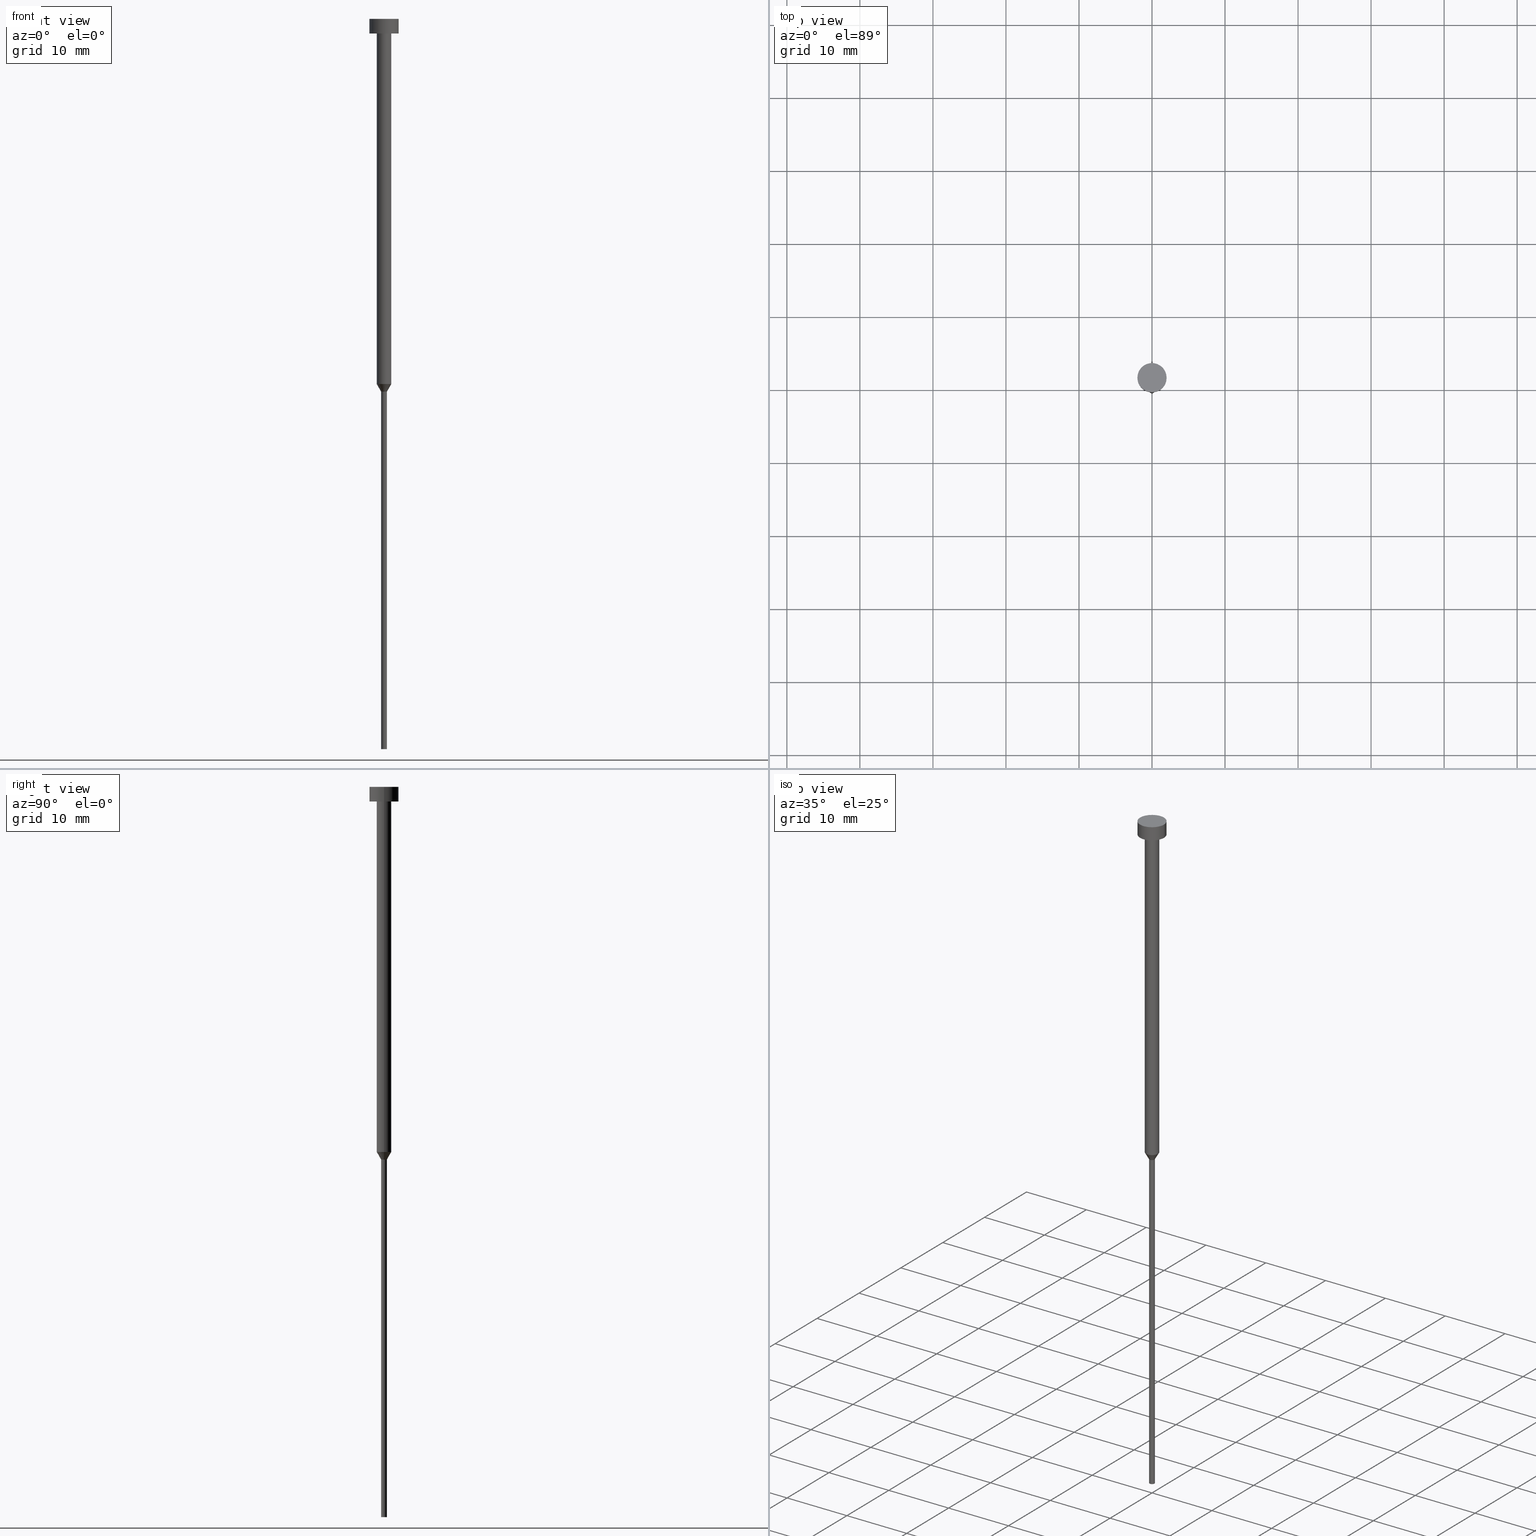
[diagram: canonical four-view strip — front | top / right | iso, engineering-drawing reading convention]
A machine part, canonical four-view strip (front | top / right | iso — engineering-drawing reading convention). The complete STEP part file that produces these views, byte-faithful:
ISO-10303-21;
HEADER;
FILE_DESCRIPTION (( 'STEP AP203' ),
    '1' );
FILE_NAME ('7100.STEP',
    '2024-09-06T08:46:56',
    ( '' ),
    ( '' ),
    'SwSTEP 2.0',
    'SolidWorks 2019',
    '' );
FILE_SCHEMA (( 'CONFIG_CONTROL_DESIGN' ));
ENDSEC;

DATA;
#1 = PERSON_AND_ORGANIZATION_ROLE ( 'design_owner' ) ;
#2 = ORIENTED_EDGE ( 'NONE', *, *, #165, .T. ) ;
#3 = CARTESIAN_POINT ( 'NONE',  ( 0.000000000000000000, 0.000000000000000000, -100.0000000000000000 ) ) ;
#4 = CC_DESIGN_PERSON_AND_ORGANIZATION_ASSIGNMENT ( #179, #69, ( #21 ) ) ;
#5 = DIRECTION ( 'NONE',  ( 1.000000000000000000, 0.000000000000000000, 0.000000000000000000 ) ) ;
#6 = PERSON_AND_ORGANIZATION ( #9, #188 ) ;
#7 = EDGE_LOOP ( 'NONE', ( #200, #2, #274, #240 ) ) ;
#8 = LOCAL_TIME ( 10, 46, 56.00000000000000000, #172 ) ;
#9 = PERSON ( 'NEUR�EN�', 'NEUR�EN�', 'NEUR�EN�', ('NEUR�EN�'), ('NEUR�EN�'), ('NEUR�EN�') ) ;
#10 = DIRECTION ( 'NONE',  ( 0.000000000000000000, 0.000000000000000000, 1.000000000000000000 ) ) ;
#11 = FACE_OUTER_BOUND ( 'NONE', #314, .T. ) ;
#12 = APPROVAL ( #286, 'NEUR�EN�' ) ;
#13 = ORIENTED_EDGE ( 'NONE', *, *, #158, .T. ) ;
#14 = ORIENTED_EDGE ( 'NONE', *, *, #124, .T. ) ;
#15 = CIRCLE ( 'NONE', #340, 2.000000000000000000 ) ;
#16 = CYLINDRICAL_SURFACE ( 'NONE', #95, 1.000000000000003331 ) ;
#17 = DIRECTION ( 'NONE',  ( 1.000000000000000000, 0.000000000000000000, 0.000000000000000000 ) ) ;
#18 = ADVANCED_FACE ( 'NONE', ( #220 ), #266, .T. ) ;
#19 = CALENDAR_DATE ( 2024, 6, 9 ) ;
#20 = DIRECTION ( 'NONE',  ( -0.000000000000000000, -0.000000000000000000, 1.000000000000000000 ) ) ;
#21 = PRODUCT_DEFINITION_FORMATION_WITH_SPECIFIED_SOURCE ( 'LIBOVOLN�', '', #236, .NOT_KNOWN. ) ;
#22 = VECTOR ( 'NONE', #339, 1000.000000000000227 ) ;
#23 = DIRECTION ( 'NONE',  ( -1.000000000000000000, 0.000000000000000000, -0.000000000000000000 ) ) ;
#24 = APPROVAL_PERSON_ORGANIZATION ( #149, #37, #147 ) ;
#25 = EDGE_CURVE ( 'NONE', #58, #238, #338, .T. ) ;
#26 = DIRECTION ( 'NONE',  ( -0.5000000000000021094, 6.123233995736791920E-17, 0.8660254037844373753 ) ) ;
#27 = ORIENTED_EDGE ( 'NONE', *, *, #124, .F. ) ;
#28 = DIRECTION ( 'NONE',  ( -0.000000000000000000, -0.000000000000000000, 1.000000000000000000 ) ) ;
#29 = APPLICATION_PROTOCOL_DEFINITION ( 'international standard', 'config_control_design', 1994, #45 ) ;
#30 = AXIS2_PLACEMENT_3D ( 'NONE', #326, #211, #75 ) ;
#31 = EDGE_LOOP ( 'NONE', ( #56, #213 ) ) ;
#32 = CARTESIAN_POINT ( 'NONE',  ( -0.3999999999999999667, 4.898587196589412459E-17, 0.000000000000000000 ) ) ;
#33 = CALENDAR_DATE ( 2024, 6, 9 ) ;
#34 = DIRECTION ( 'NONE',  ( 1.000000000000000000, 0.000000000000000000, 0.000000000000000000 ) ) ;
#35 = DIRECTION ( 'NONE',  ( 1.000000000000000000, 0.000000000000000000, 0.000000000000000000 ) ) ;
#36 = EDGE_LOOP ( 'NONE', ( #201, #217, #341, #299 ) ) ;
#37 = APPROVAL ( #231, 'NEUR�EN�' ) ;
#38 = CIRCLE ( 'NONE', #275, 0.3999999999999999667 ) ;
#39 = ORIENTED_EDGE ( 'NONE', *, *, #145, .F. ) ;
#40 = CARTESIAN_POINT ( 'NONE',  ( 0.000000000000000000, 0.000000000000000000, -50.00000000000000000 ) ) ;
#41 = DIRECTION ( 'NONE',  ( 0.000000000000000000, -0.000000000000000000, 1.000000000000000000 ) ) ;
#42 = AXIS2_PLACEMENT_3D ( 'NONE', #108, #41, #101 ) ;
#43 = DESIGN_CONTEXT ( 'detailed design', #202, 'design' ) ;
#44 = DIRECTION ( 'NONE',  ( 1.000000000000000000, 0.000000000000000000, 0.000000000000000000 ) ) ;
#45 = APPLICATION_CONTEXT ( 'configuration controlled 3d designs of mechanical parts and assemblies' ) ;
#46 = DIRECTION ( 'NONE',  ( 1.000000000000000000, 0.000000000000000000, 0.000000000000000000 ) ) ;
#47 = CC_DESIGN_APPROVAL ( #72, ( #53 ) ) ;
#48 = FACE_OUTER_BOUND ( 'NONE', #332, .T. ) ;
#49 = CIRCLE ( 'NONE', #251, 1.000000000000003553 ) ;
#50 = EDGE_LOOP ( 'NONE', ( #27, #255, #168, #163 ) ) ;
#51 = CARTESIAN_POINT ( 'NONE',  ( 0.000000000000000000, 0.000000000000000000, 0.000000000000000000 ) ) ;
#52 = LOCAL_TIME ( 10, 46, 56.00000000000000000, #96 ) ;
#53 = PRODUCT_DEFINITION ( 'NEZN�M�', '', #21, #43 ) ;
#54 = ORIENTED_EDGE ( 'NONE', *, *, #158, .F. ) ;
#55 = CARTESIAN_POINT ( 'NONE',  ( 0.000000000000000000, 0.000000000000000000, 0.000000000000000000 ) ) ;
#56 = ORIENTED_EDGE ( 'NONE', *, *, #191, .T. ) ;
#57 = CARTESIAN_POINT ( 'NONE',  ( 0.000000000000000000, 0.000000000000000000, 0.000000000000000000 ) ) ;
#58 = VERTEX_POINT ( 'NONE', #254 ) ;
#59 = FACE_OUTER_BOUND ( 'NONE', #281, .T. ) ;
#60 = FACE_OUTER_BOUND ( 'NONE', #155, .T. ) ;
#61 = EDGE_CURVE ( 'NONE', #329, #272, #49, .T. ) ;
#62 = ORIENTED_EDGE ( 'NONE', *, *, #136, .T. ) ;
#63 = VERTEX_POINT ( 'NONE', #225 ) ;
#64 = SECURITY_CLASSIFICATION ( '', '', #227 ) ;
#65 = CARTESIAN_POINT ( 'NONE',  ( 2.000000000000000000, 0.000000000000000000, -2.000000000000000444 ) ) ;
#66 = CALENDAR_DATE ( 2024, 6, 9 ) ;
#67 = CARTESIAN_POINT ( 'NONE',  ( 0.4000000000000000222, 0.000000000000000000, -100.0000000000000000 ) ) ;
#68 = LINE ( 'NONE', #110, #241 ) ;
#69 = PERSON_AND_ORGANIZATION_ROLE ( 'design_supplier' ) ;
#70 = CARTESIAN_POINT ( 'NONE',  ( 0.000000000000000000, 0.000000000000000000, -2.000000000000000444 ) ) ;
#71 = ADVANCED_BREP_SHAPE_REPRESENTATION ( '7100', ( #78, #153 ), #162 ) ;
#72 = APPROVAL ( #114, 'NEUR�EN�' ) ;
#73 = CARTESIAN_POINT ( 'NONE',  ( 0.000000000000000000, 0.000000000000000000, -50.00000000000000000 ) ) ;
#74 = DIRECTION ( 'NONE',  ( -0.000000000000000000, -0.000000000000000000, 1.000000000000000000 ) ) ;
#75 = DIRECTION ( 'NONE',  ( 1.000000000000000000, 0.000000000000000000, 0.000000000000000000 ) ) ;
#76 = CIRCLE ( 'NONE', #328, 0.4000000000000000222 ) ;
#77 = ORIENTED_EDGE ( 'NONE', *, *, #351, .F. ) ;
#78 = MANIFOLD_SOLID_BREP ( 'Rotovat1', #82 ) ;
#79 = EDGE_CURVE ( 'NONE', #238, #80, #99, .T. ) ;
#80 = VERTEX_POINT ( 'NONE', #94 ) ;
#81 = CARTESIAN_POINT ( 'NONE',  ( 1.000000000000003331, 0.000000000000000000, 0.000000000000000000 ) ) ;
#82 = CLOSED_SHELL ( 'NONE', ( #229, #321, #102, #216, #256, #150, #18, #186, #88, #210, #192 ) ) ;
#83 = VERTEX_POINT ( 'NONE', #65 ) ;
#84 = DATE_AND_TIME ( #219, #354 ) ;
#85 = VECTOR ( 'NONE', #271, 1000.000000000000000 ) ;
#86 = CC_DESIGN_SECURITY_CLASSIFICATION ( #64, ( #21 ) ) ;
#87 = CARTESIAN_POINT ( 'NONE',  ( 0.000000000000000000, 0.000000000000000000, -50.00000000000000000 ) ) ;
#88 = ADVANCED_FACE ( 'NONE', ( #305, #59 ), #287, .T. ) ;
#89 = LINE ( 'NONE', #81, #245 ) ;
#90 = ORIENTED_EDGE ( 'NONE', *, *, #130, .F. ) ;
#91 = DIRECTION ( 'NONE',  ( -0.000000000000000000, -0.000000000000000000, 1.000000000000000000 ) ) ;
#92 = ORIENTED_EDGE ( 'NONE', *, *, #294, .F. ) ;
#93 = CIRCLE ( 'NONE', #327, 0.4000000000000000222 ) ;
#94 = CARTESIAN_POINT ( 'NONE',  ( -1.000000000000003109, 1.224646799147356905E-16, -50.00000000000000000 ) ) ;
#95 = AXIS2_PLACEMENT_3D ( 'NONE', #51, #237, #228 ) ;
#96 = COORDINATED_UNIVERSAL_TIME_OFFSET ( 1, 0, .AHEAD. ) ;
#97 = DIRECTION ( 'NONE',  ( 1.000000000000000000, 0.000000000000000000, 0.000000000000000000 ) ) ;
#98 = FACE_OUTER_BOUND ( 'NONE', #243, .T. ) ;
#99 = CIRCLE ( 'NONE', #184, 1.000000000000003109 ) ;
#100 = APPROVAL_DATE_TIME ( #342, #12 ) ;
#101 = DIRECTION ( 'NONE',  ( 1.000000000000000000, 0.000000000000000000, 0.000000000000000000 ) ) ;
#102 = ADVANCED_FACE ( 'NONE', ( #11 ), #257, .T. ) ;
#103 = DIRECTION ( 'NONE',  ( 1.000000000000000000, 0.000000000000000000, 0.000000000000000000 ) ) ;
#104 = AXIS2_PLACEMENT_3D ( 'NONE', #313, #226, #279 ) ;
#105 = AXIS2_PLACEMENT_3D ( 'NONE', #319, #148, #180 ) ;
#106 = VERTEX_POINT ( 'NONE', #67 ) ;
#107 = CC_DESIGN_DATE_AND_TIME_ASSIGNMENT ( #127, #198, ( #64 ) ) ;
#108 = CARTESIAN_POINT ( 'NONE',  ( 0.000000000000000000, 0.000000000000000000, -1.224646799147352961E-16 ) ) ;
#109 = ORIENTED_EDGE ( 'NONE', *, *, #25, .F. ) ;
#110 = CARTESIAN_POINT ( 'NONE',  ( -1.000000000000003331, 1.224646799147357151E-16, 0.000000000000000000 ) ) ;
#111 = ORIENTED_EDGE ( 'NONE', *, *, #176, .T. ) ;
#112 = APPROVAL_ROLE ( '' ) ;
#113 = AXIS2_PLACEMENT_3D ( 'NONE', #230, #182, #263 ) ;
#114 = APPROVAL_STATUS ( 'not_yet_approved' ) ;
#115 = AXIS2_PLACEMENT_3D ( 'NONE', #40, #282, #34 ) ;
#116 = AXIS2_PLACEMENT_3D ( 'NONE', #223, #249, #5 ) ;
#117 = EDGE_LOOP ( 'NONE', ( #92, #330, #221, #143 ) ) ;
#118 = DATE_TIME_ROLE ( 'creation_date' ) ;
#119 = AXIS2_PLACEMENT_3D ( 'NONE', #300, #193, #142 ) ;
#120 = VERTEX_POINT ( 'NONE', #175 ) ;
#121 = CC_DESIGN_PERSON_AND_ORGANIZATION_ASSIGNMENT ( #6, #304, ( #53 ) ) ;
#122 = DIRECTION ( 'NONE',  ( -0.000000000000000000, -0.000000000000000000, 1.000000000000000000 ) ) ;
#123 = CARTESIAN_POINT ( 'NONE',  ( -2.000000000000000000, 2.449293598294706414E-16, 0.000000000000000000 ) ) ;
#124 = EDGE_CURVE ( 'NONE', #284, #120, #139, .T. ) ;
#125 = CARTESIAN_POINT ( 'NONE',  ( 0.000000000000000000, 0.000000000000000000, -2.000000000000000444 ) ) ;
#126 = ORIENTED_EDGE ( 'NONE', *, *, #309, .T. ) ;
#127 = DATE_AND_TIME ( #19, #8 ) ;
#128 = FACE_OUTER_BOUND ( 'NONE', #31, .T. ) ;
#129 = DIRECTION ( 'NONE',  ( -0.000000000000000000, -0.000000000000000000, 1.000000000000000000 ) ) ;
#130 = EDGE_CURVE ( 'NONE', #83, #284, #267, .T. ) ;
#131 = PLANE ( 'NONE',  #42 ) ;
#132 = EDGE_CURVE ( 'NONE', #120, #297, #316, .T. ) ;
#133 = CIRCLE ( 'NONE', #334, 1.000000000000003109 ) ;
#134 = LINE ( 'NONE', #324, #214 ) ;
#135 = CARTESIAN_POINT ( 'NONE',  ( 1.000000000000003109, 0.000000000000000000, -50.00000000000000000 ) ) ;
#136 = EDGE_CURVE ( 'NONE', #80, #329, #68, .T. ) ;
#137 = PERSON_AND_ORGANIZATION ( #9, #188 ) ;
#138 = CARTESIAN_POINT ( 'NONE',  ( -2.000000000000000000, 2.449293598294706414E-16, -2.000000000000000444 ) ) ;
#139 = LINE ( 'NONE', #123, #302 ) ;
#140 = DATE_AND_TIME ( #33, #347 ) ;
#141 = CARTESIAN_POINT ( 'NONE',  ( 0.000000000000000000, 0.000000000000000000, -2.449293598294705921E-16 ) ) ;
#142 = DIRECTION ( 'NONE',  ( 1.000000000000000000, 0.000000000000000000, 0.000000000000000000 ) ) ;
#143 = ORIENTED_EDGE ( 'NONE', *, *, #165, .F. ) ;
#144 = CARTESIAN_POINT ( 'NONE',  ( 1.000000000000003109, 0.000000000000000000, -50.00000000000000000 ) ) ;
#145 = EDGE_CURVE ( 'NONE', #106, #204, #93, .T. ) ;
#146 = DIRECTION ( 'NONE',  ( 1.000000000000000000, 0.000000000000000000, 0.000000000000000000 ) ) ;
#147 = APPROVAL_ROLE ( '' ) ;
#148 = DIRECTION ( 'NONE',  ( -0.000000000000000000, -0.000000000000000000, 1.000000000000000000 ) ) ;
#149 = PERSON_AND_ORGANIZATION ( #9, #188 ) ;
#150 = ADVANCED_FACE ( 'NONE', ( #189 ), #349, .T. ) ;
#151 = CYLINDRICAL_SURFACE ( 'NONE', #288, 2.000000000000000000 ) ;
#152 = PLANE ( 'NONE',  #289 ) ;
#153 = AXIS2_PLACEMENT_3D ( 'NONE', #57, #10, #222 ) ;
#154 = FACE_OUTER_BOUND ( 'NONE', #173, .T. ) ;
#155 = EDGE_LOOP ( 'NONE', ( #301, #62, #54, #277 ) ) ;
#156 = LOCAL_TIME ( 10, 46, 56.00000000000000000, #315 ) ;
#157 = CARTESIAN_POINT ( 'NONE',  ( 0.000000000000000000, 0.000000000000000000, 0.000000000000000000 ) ) ;
#158 = EDGE_CURVE ( 'NONE', #272, #329, #244, .T. ) ;
#159 = EDGE_LOOP ( 'NONE', ( #13, #350 ) ) ;
#160 = MECHANICAL_CONTEXT ( 'NONE', #45, 'mechanical' ) ;
#161 =( LENGTH_UNIT ( ) NAMED_UNIT ( * ) SI_UNIT ( .MILLI., .METRE. ) );
#162 =( GEOMETRIC_REPRESENTATION_CONTEXT ( 3 ) GLOBAL_UNCERTAINTY_ASSIGNED_CONTEXT ( ( #248 ) ) GLOBAL_UNIT_ASSIGNED_CONTEXT ( ( #161, #273, #246 ) ) REPRESENTATION_CONTEXT ( 'NONE', 'WORKASPACE' ) );
#163 = ORIENTED_EDGE ( 'NONE', *, *, #132, .F. ) ;
#164 = LINE ( 'NONE', #32, #323 ) ;
#165 = EDGE_CURVE ( 'NONE', #63, #58, #235, .T. ) ;
#166 = DIRECTION ( 'NONE',  ( -1.000000000000000000, 0.000000000000000000, -0.000000000000000000 ) ) ;
#167 = CARTESIAN_POINT ( 'NONE',  ( -1.000000000000003553, 1.224646799147357398E-16, -2.000000000000000444 ) ) ;
#168 = ORIENTED_EDGE ( 'NONE', *, *, #264, .T. ) ;
#169 = PERSON_AND_ORGANIZATION_ROLE ( 'classification_officer' ) ;
#170 = ORIENTED_EDGE ( 'NONE', *, *, #79, .F. ) ;
#171 = CC_DESIGN_DATE_AND_TIME_ASSIGNMENT ( #140, #118, ( #53 ) ) ;
#172 = COORDINATED_UNIVERSAL_TIME_OFFSET ( 1, 0, .AHEAD. ) ;
#173 = EDGE_LOOP ( 'NONE', ( #310, #348, #190, #270 ) ) ;
#174 = PERSON_AND_ORGANIZATION ( #9, #188 ) ;
#175 = CARTESIAN_POINT ( 'NONE',  ( -2.000000000000000000, 2.449293598294706414E-16, -2.449293598294705921E-16 ) ) ;
#176 = EDGE_CURVE ( 'NONE', #63, #80, #185, .T. ) ;
#177 = DIRECTION ( 'NONE',  ( -0.000000000000000000, -0.000000000000000000, 1.000000000000000000 ) ) ;
#178 = AXIS2_PLACEMENT_3D ( 'NONE', #55, #91, #242 ) ;
#179 = PERSON_AND_ORGANIZATION ( #9, #188 ) ;
#180 = DIRECTION ( 'NONE',  ( 1.000000000000000000, 0.000000000000000000, 0.000000000000000000 ) ) ;
#181 = CC_DESIGN_PERSON_AND_ORGANIZATION_ASSIGNMENT ( #345, #311, ( #21 ) ) ;
#182 = DIRECTION ( 'NONE',  ( -0.000000000000000000, -0.000000000000000000, 1.000000000000000000 ) ) ;
#183 = PRODUCT_DEFINITION_SHAPE ( 'NONE', 'NONE',  #53 ) ;
#184 = AXIS2_PLACEMENT_3D ( 'NONE', #87, #195, #97 ) ;
#185 = LINE ( 'NONE', #352, #322 ) ;
#186 = ADVANCED_FACE ( 'NONE', ( #154 ), #16, .T. ) ;
#187 = ORIENTED_EDGE ( 'NONE', *, *, #191, .F. ) ;
#188 = ORGANIZATION ( 'NEUR�EN�', 'NEUR�EN�', '' ) ;
#189 = FACE_OUTER_BOUND ( 'NONE', #117, .T. ) ;
#190 = ORIENTED_EDGE ( 'NONE', *, *, #283, .T. ) ;
#191 = EDGE_CURVE ( 'NONE', #297, #120, #15, .T. ) ;
#192 = ADVANCED_FACE ( 'NONE', ( #128 ), #131, .T. ) ;
#193 = DIRECTION ( 'NONE',  ( -0.000000000000000000, -0.000000000000000000, 1.000000000000000000 ) ) ;
#194 = APPROVAL_DATE_TIME ( #84, #72 ) ;
#195 = DIRECTION ( 'NONE',  ( -0.000000000000000000, -0.000000000000000000, 1.000000000000000000 ) ) ;
#196 = CARTESIAN_POINT ( 'NONE',  ( 2.000000000000000000, 0.000000000000000000, -2.449293598294705921E-16 ) ) ;
#197 = DIRECTION ( 'NONE',  ( -0.000000000000000000, -0.000000000000000000, 1.000000000000000000 ) ) ;
#198 = DATE_TIME_ROLE ( 'classification_date' ) ;
#199 = CC_DESIGN_PERSON_AND_ORGANIZATION_ASSIGNMENT ( #137, #1, ( #236 ) ) ;
#200 = ORIENTED_EDGE ( 'NONE', *, *, #176, .F. ) ;
#201 = ORIENTED_EDGE ( 'NONE', *, *, #145, .T. ) ;
#202 = APPLICATION_CONTEXT ( 'configuration controlled 3d designs of mechanical parts and assemblies' ) ;
#203 = APPROVAL_DATE_TIME ( #262, #37 ) ;
#204 = VERTEX_POINT ( 'NONE', #290 ) ;
#205 = DIRECTION ( 'NONE',  ( 0.000000000000000000, 0.000000000000000000, -1.000000000000000000 ) ) ;
#206 = SHAPE_DEFINITION_REPRESENTATION ( #183, #71 ) ;
#207 = AXIS2_PLACEMENT_3D ( 'NONE', #70, #320, #261 ) ;
#208 = FACE_OUTER_BOUND ( 'NONE', #50, .T. ) ;
#209 = DIRECTION ( 'NONE',  ( -0.000000000000000000, -0.000000000000000000, 1.000000000000000000 ) ) ;
#210 = ADVANCED_FACE ( 'NONE', ( #208 ), #212, .T. ) ;
#211 = DIRECTION ( 'NONE',  ( -0.000000000000000000, -0.000000000000000000, 1.000000000000000000 ) ) ;
#212 = CYLINDRICAL_SURFACE ( 'NONE', #30, 2.000000000000000000 ) ;
#213 = ORIENTED_EDGE ( 'NONE', *, *, #132, .T. ) ;
#214 = VECTOR ( 'NONE', #74, 1000.000000000000000 ) ;
#215 = DIRECTION ( 'NONE',  ( 1.000000000000000000, 0.000000000000000000, 0.000000000000000000 ) ) ;
#216 = ADVANCED_FACE ( 'NONE', ( #296 ), #343, .T. ) ;
#217 = ORIENTED_EDGE ( 'NONE', *, *, #294, .T. ) ;
#218 = ORIENTED_EDGE ( 'NONE', *, *, #280, .F. ) ;
#219 = CALENDAR_DATE ( 2024, 6, 9 ) ;
#220 = FACE_OUTER_BOUND ( 'NONE', #7, .T. ) ;
#221 = ORIENTED_EDGE ( 'NONE', *, *, #234, .T. ) ;
#222 = DIRECTION ( 'NONE',  ( 1.000000000000000000, 0.000000000000000000, 0.000000000000000000 ) ) ;
#223 = CARTESIAN_POINT ( 'NONE',  ( 0.000000000000000000, 0.000000000000000000, -2.000000000000000444 ) ) ;
#224 = AXIS2_PLACEMENT_3D ( 'NONE', #336, #258, #166 ) ;
#225 = CARTESIAN_POINT ( 'NONE',  ( -0.3999999999999999667, 4.898587196589412459E-17, -51.03923048454132783 ) ) ;
#226 = DIRECTION ( 'NONE',  ( -0.000000000000000000, -0.000000000000000000, 1.000000000000000000 ) ) ;
#227 = SECURITY_CLASSIFICATION_LEVEL ( 'unclassified' ) ;
#228 = DIRECTION ( 'NONE',  ( 1.000000000000000000, 0.000000000000000000, 0.000000000000000000 ) ) ;
#229 = ADVANCED_FACE ( 'NONE', ( #98 ), #151, .T. ) ;
#230 = CARTESIAN_POINT ( 'NONE',  ( 0.000000000000000000, 0.000000000000000000, -51.03923048454132783 ) ) ;
#231 = APPROVAL_STATUS ( 'not_yet_approved' ) ;
#232 = CARTESIAN_POINT ( 'NONE',  ( 0.3999999999999999667, 0.000000000000000000, 0.000000000000000000 ) ) ;
#233 = APPROVAL_PERSON_ORGANIZATION ( #276, #72, #112 ) ;
#234 = EDGE_CURVE ( 'NONE', #106, #58, #317, .T. ) ;
#235 = CIRCLE ( 'NONE', #113, 0.3999999999999999667 ) ;
#236 = PRODUCT ( '7100', '7100', '', ( #160 ) ) ;
#237 = DIRECTION ( 'NONE',  ( -0.000000000000000000, -0.000000000000000000, 1.000000000000000000 ) ) ;
#238 = VERTEX_POINT ( 'NONE', #135 ) ;
#239 = DIRECTION ( 'NONE',  ( 1.000000000000000000, 0.000000000000000000, 0.000000000000000000 ) ) ;
#240 = ORIENTED_EDGE ( 'NONE', *, *, #253, .F. ) ;
#241 = VECTOR ( 'NONE', #177, 1000.000000000000000 ) ;
#242 = DIRECTION ( 'NONE',  ( 1.000000000000000000, 0.000000000000000000, 0.000000000000000000 ) ) ;
#243 = EDGE_LOOP ( 'NONE', ( #355, #14, #187, #353 ) ) ;
#244 = CIRCLE ( 'NONE', #207, 1.000000000000003553 ) ;
#245 = VECTOR ( 'NONE', #28, 1000.000000000000000 ) ;
#246 =( NAMED_UNIT ( * ) SI_UNIT ( $, .STERADIAN. ) SOLID_ANGLE_UNIT ( ) );
#247 = APPLICATION_PROTOCOL_DEFINITION ( 'international standard', 'config_control_design', 1994, #202 ) ;
#248 = UNCERTAINTY_MEASURE_WITH_UNIT (LENGTH_MEASURE( 1.000000000000000082E-05 ), #161, 'distance_accuracy_value', 'NONE');
#249 = DIRECTION ( 'NONE',  ( -0.000000000000000000, -0.000000000000000000, 1.000000000000000000 ) ) ;
#250 = CYLINDRICAL_SURFACE ( 'NONE', #178, 1.000000000000003331 ) ;
#251 = AXIS2_PLACEMENT_3D ( 'NONE', #125, #333, #146 ) ;
#252 = DIRECTION ( 'NONE',  ( -0.000000000000000000, -0.000000000000000000, 1.000000000000000000 ) ) ;
#253 = EDGE_CURVE ( 'NONE', #80, #238, #133, .T. ) ;
#254 = CARTESIAN_POINT ( 'NONE',  ( 0.3999999999999999667, 0.000000000000000000, -51.03923048454132783 ) ) ;
#255 = ORIENTED_EDGE ( 'NONE', *, *, #351, .T. ) ;
#256 = ADVANCED_FACE ( 'NONE', ( #48 ), #152, .T. ) ;
#257 = CONICAL_SURFACE ( 'NONE', #104, 1.000000000000003109, 0.5235987755983013692 ) ;
#258 = DIRECTION ( 'NONE',  ( 0.000000000000000000, 0.000000000000000000, -1.000000000000000000 ) ) ;
#259 = DIRECTION ( 'NONE',  ( -0.000000000000000000, -0.000000000000000000, 1.000000000000000000 ) ) ;
#260 = PERSON_AND_ORGANIZATION ( #9, #188 ) ;
#261 = DIRECTION ( 'NONE',  ( 1.000000000000000000, 0.000000000000000000, 0.000000000000000000 ) ) ;
#262 = DATE_AND_TIME ( #66, #156 ) ;
#263 = DIRECTION ( 'NONE',  ( 1.000000000000000000, 0.000000000000000000, 0.000000000000000000 ) ) ;
#264 = EDGE_CURVE ( 'NONE', #83, #297, #134, .T. ) ;
#265 = APPROVAL_PERSON_ORGANIZATION ( #174, #12, #308 ) ;
#266 = CONICAL_SURFACE ( 'NONE', #115, 1.000000000000003109, 0.5235987755983013692 ) ;
#267 = CIRCLE ( 'NONE', #116, 2.000000000000000000 ) ;
#268 = CARTESIAN_POINT ( 'NONE',  ( 0.000000000000000000, 0.000000000000000000, -100.0000000000000000 ) ) ;
#269 = CC_DESIGN_APPROVAL ( #12, ( #64 ) ) ;
#270 = ORIENTED_EDGE ( 'NONE', *, *, #61, .F. ) ;
#271 = DIRECTION ( 'NONE',  ( -0.000000000000000000, -0.000000000000000000, 1.000000000000000000 ) ) ;
#272 = VERTEX_POINT ( 'NONE', #335 ) ;
#273 =( NAMED_UNIT ( * ) PLANE_ANGLE_UNIT ( ) SI_UNIT ( $, .RADIAN. ) );
#274 = ORIENTED_EDGE ( 'NONE', *, *, #25, .T. ) ;
#275 = AXIS2_PLACEMENT_3D ( 'NONE', #303, #306, #35 ) ;
#276 = PERSON_AND_ORGANIZATION ( #9, #188 ) ;
#277 = ORIENTED_EDGE ( 'NONE', *, *, #283, .F. ) ;
#278 = COORDINATED_UNIVERSAL_TIME_OFFSET ( 1, 0, .AHEAD. ) ;
#279 = DIRECTION ( 'NONE',  ( 1.000000000000000000, 0.000000000000000000, 0.000000000000000000 ) ) ;
#280 = EDGE_CURVE ( 'NONE', #204, #106, #76, .T. ) ;
#281 = EDGE_LOOP ( 'NONE', ( #90, #77 ) ) ;
#282 = DIRECTION ( 'NONE',  ( -0.000000000000000000, -0.000000000000000000, 1.000000000000000000 ) ) ;
#283 = EDGE_CURVE ( 'NONE', #238, #272, #89, .T. ) ;
#284 = VERTEX_POINT ( 'NONE', #138 ) ;
#285 = CC_DESIGN_PERSON_AND_ORGANIZATION_ASSIGNMENT ( #260, #169, ( #64 ) ) ;
#286 = APPROVAL_STATUS ( 'not_yet_approved' ) ;
#287 = PLANE ( 'NONE',  #224 ) ;
#288 = AXIS2_PLACEMENT_3D ( 'NONE', #157, #346, #44 ) ;
#289 = AXIS2_PLACEMENT_3D ( 'NONE', #268, #205, #23 ) ;
#290 = CARTESIAN_POINT ( 'NONE',  ( -0.4000000000000000777, 4.898587196589413692E-17, -100.0000000000000000 ) ) ;
#291 = CALENDAR_DATE ( 2024, 6, 9 ) ;
#292 = CARTESIAN_POINT ( 'NONE',  ( 0.000000000000000000, 0.000000000000000000, 0.000000000000000000 ) ) ;
#293 = CC_DESIGN_APPROVAL ( #37, ( #21 ) ) ;
#294 = EDGE_CURVE ( 'NONE', #204, #63, #164, .T. ) ;
#295 = PRODUCT_RELATED_PRODUCT_CATEGORY ( 'detail', '', ( #236 ) ) ;
#296 = FACE_OUTER_BOUND ( 'NONE', #36, .T. ) ;
#297 = VERTEX_POINT ( 'NONE', #196 ) ;
#298 = CARTESIAN_POINT ( 'NONE',  ( 0.000000000000000000, 0.000000000000000000, -100.0000000000000000 ) ) ;
#299 = ORIENTED_EDGE ( 'NONE', *, *, #234, .F. ) ;
#300 = CARTESIAN_POINT ( 'NONE',  ( 0.000000000000000000, 0.000000000000000000, -2.000000000000000444 ) ) ;
#301 = ORIENTED_EDGE ( 'NONE', *, *, #79, .T. ) ;
#302 = VECTOR ( 'NONE', #197, 1000.000000000000000 ) ;
#303 = CARTESIAN_POINT ( 'NONE',  ( 0.000000000000000000, 0.000000000000000000, -51.03923048454132783 ) ) ;
#304 = PERSON_AND_ORGANIZATION_ROLE ( 'creator' ) ;
#305 = FACE_BOUND ( 'NONE', #159, .T. ) ;
#306 = DIRECTION ( 'NONE',  ( -0.000000000000000000, -0.000000000000000000, 1.000000000000000000 ) ) ;
#307 = DIRECTION ( 'NONE',  ( 1.000000000000000000, 0.000000000000000000, 0.000000000000000000 ) ) ;
#308 = APPROVAL_ROLE ( '' ) ;
#309 = EDGE_CURVE ( 'NONE', #58, #63, #38, .T. ) ;
#310 = ORIENTED_EDGE ( 'NONE', *, *, #136, .F. ) ;
#311 = PERSON_AND_ORGANIZATION_ROLE ( 'creator' ) ;
#312 = CIRCLE ( 'NONE', #119, 2.000000000000000000 ) ;
#313 = CARTESIAN_POINT ( 'NONE',  ( 0.000000000000000000, 0.000000000000000000, -50.00000000000000000 ) ) ;
#314 = EDGE_LOOP ( 'NONE', ( #126, #111, #170, #109 ) ) ;
#315 = COORDINATED_UNIVERSAL_TIME_OFFSET ( 1, 0, .AHEAD. ) ;
#316 = CIRCLE ( 'NONE', #325, 2.000000000000000000 ) ;
#317 = LINE ( 'NONE', #232, #85 ) ;
#318 = AXIS2_PLACEMENT_3D ( 'NONE', #292, #209, #17 ) ;
#319 = CARTESIAN_POINT ( 'NONE',  ( 0.000000000000000000, 0.000000000000000000, 0.000000000000000000 ) ) ;
#320 = DIRECTION ( 'NONE',  ( -0.000000000000000000, -0.000000000000000000, 1.000000000000000000 ) ) ;
#321 = ADVANCED_FACE ( 'NONE', ( #60 ), #250, .T. ) ;
#322 = VECTOR ( 'NONE', #26, 1000.000000000000227 ) ;
#323 = VECTOR ( 'NONE', #122, 1000.000000000000000 ) ;
#324 = CARTESIAN_POINT ( 'NONE',  ( 2.000000000000000000, 0.000000000000000000, 0.000000000000000000 ) ) ;
#325 = AXIS2_PLACEMENT_3D ( 'NONE', #141, #252, #307 ) ;
#326 = CARTESIAN_POINT ( 'NONE',  ( 0.000000000000000000, 0.000000000000000000, 0.000000000000000000 ) ) ;
#327 = AXIS2_PLACEMENT_3D ( 'NONE', #298, #20, #239 ) ;
#328 = AXIS2_PLACEMENT_3D ( 'NONE', #3, #337, #215 ) ;
#329 = VERTEX_POINT ( 'NONE', #167 ) ;
#330 = ORIENTED_EDGE ( 'NONE', *, *, #280, .T. ) ;
#331 = COORDINATED_UNIVERSAL_TIME_OFFSET ( 1, 0, .AHEAD. ) ;
#332 = EDGE_LOOP ( 'NONE', ( #39, #218 ) ) ;
#333 = DIRECTION ( 'NONE',  ( -0.000000000000000000, -0.000000000000000000, 1.000000000000000000 ) ) ;
#334 = AXIS2_PLACEMENT_3D ( 'NONE', #73, #259, #46 ) ;
#335 = CARTESIAN_POINT ( 'NONE',  ( 1.000000000000003553, 0.000000000000000000, -2.000000000000000444 ) ) ;
#336 = CARTESIAN_POINT ( 'NONE',  ( 0.000000000000000000, -2.000000000000000000, -2.000000000000000444 ) ) ;
#337 = DIRECTION ( 'NONE',  ( -0.000000000000000000, -0.000000000000000000, 1.000000000000000000 ) ) ;
#338 = LINE ( 'NONE', #144, #22 ) ;
#339 = DIRECTION ( 'NONE',  ( 0.5000000000000021094, 0.000000000000000000, 0.8660254037844373753 ) ) ;
#340 = AXIS2_PLACEMENT_3D ( 'NONE', #344, #129, #103 ) ;
#341 = ORIENTED_EDGE ( 'NONE', *, *, #309, .F. ) ;
#342 = DATE_AND_TIME ( #291, #52 ) ;
#343 = CYLINDRICAL_SURFACE ( 'NONE', #105, 0.3999999999999999667 ) ;
#344 = CARTESIAN_POINT ( 'NONE',  ( 0.000000000000000000, 0.000000000000000000, -2.449293598294705921E-16 ) ) ;
#345 = PERSON_AND_ORGANIZATION ( #9, #188 ) ;
#346 = DIRECTION ( 'NONE',  ( -0.000000000000000000, -0.000000000000000000, 1.000000000000000000 ) ) ;
#347 = LOCAL_TIME ( 10, 46, 56.00000000000000000, #278 ) ;
#348 = ORIENTED_EDGE ( 'NONE', *, *, #253, .T. ) ;
#349 = CYLINDRICAL_SURFACE ( 'NONE', #318, 0.3999999999999999667 ) ;
#350 = ORIENTED_EDGE ( 'NONE', *, *, #61, .T. ) ;
#351 = EDGE_CURVE ( 'NONE', #284, #83, #312, .T. ) ;
#352 = CARTESIAN_POINT ( 'NONE',  ( -1.000000000000003109, 1.224646799147356905E-16, -50.00000000000000000 ) ) ;
#353 = ORIENTED_EDGE ( 'NONE', *, *, #264, .F. ) ;
#354 = LOCAL_TIME ( 10, 46, 56.00000000000000000, #331 ) ;
#355 = ORIENTED_EDGE ( 'NONE', *, *, #130, .T. ) ;
ENDSEC;
END-ISO-10303-21;
